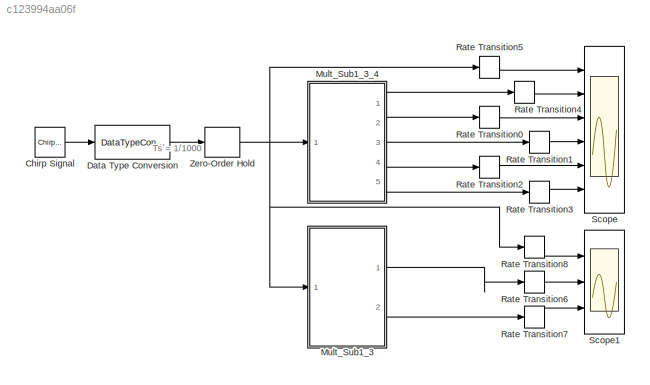
MODEL slx_c123994aa06f
KIND model
CONFIG AbsTol = auto
CONFIG FixedStep = auto
CONFIG MaxStep = auto
CONFIG MinStep = auto
CONFIG RelTol = 1e-3
CONFIG SampleTimeConstraint = Unconstrained
CONFIG Solver = FixedStepDiscrete
CONFIG SolverMode = SingleTasking
CONFIG SolverName = FixedStepDiscrete
CONFIG StartTime = 0.0
CONFIG StopTime = 1
BLOCK [Reference] Chirp Signal  REF=simulink/Sources/Chirp Signal
  Ports = [0, 1]
  SourceBlock = simulink/Sources/Chirp Signal
  SourceType = chirp
BLOCK [DataTypeConversion] Data Type Conversion
  OutDataTypeStr = fixdt(1,16,14)
  RndMeth = Floor
  SaturateOnIntegerOverflow = off
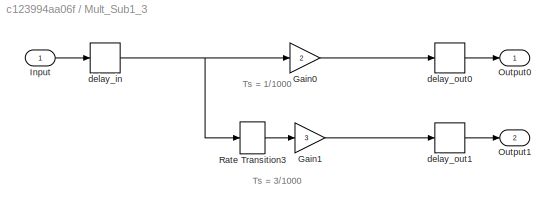
BLOCK [SubSystem] Mult_Sub1_3
  ErrorFcn = dspFilterRealizedInBasicElemsAlgLoopErrFcnCallback
  Ports = [1, 2]
  RequestExecContextInheritance = off
  Tag = FilterWizardSubSystem
  UserDataPersistent = on
  Variant = off
BLOCK [Gain] Mult_Sub1_3/Gain0
  Gain = 2
  OutDataTypeStr = Inherit: Inherit via internal rule
  ParamDataTypeStr = Inherit: Inherit via internal rule
  SaturateOnIntegerOverflow = off
BLOCK [Gain] Mult_Sub1_3/Gain1
  Gain = 3
  OutDataTypeStr = Inherit: Inherit via internal rule
  ParamDataTypeStr = Inherit: Inherit via internal rule
  SaturateOnIntegerOverflow = off
BLOCK [Inport] Mult_Sub1_3/Input
  IconDisplay = Port number
BLOCK [Outport] Mult_Sub1_3/Output0
  IconDisplay = Port number
BLOCK [Outport] Mult_Sub1_3/Output1
  IconDisplay = Port number
  Port = 2
BLOCK [RateTransition] Mult_Sub1_3/Rate Transition3
  OutPortSampleTime = 3/1000
BLOCK [Delay] Mult_Sub1_3/delay_in
  DelayLength = 1
  InitialCondition = 0
  InputPortMap = u0
  InputProcessing = Inherited
  Ports = [1, 1]
  UserDataPersistent = on
BLOCK [Delay] Mult_Sub1_3/delay_out0
  DelayLength = 1
  InitialCondition = 0
  InputPortMap = u0
  InputProcessing = Inherited
  Ports = [1, 1]
  UserDataPersistent = on
BLOCK [Delay] Mult_Sub1_3/delay_out1
  DelayLength = 1
  InitialCondition = 0
  InputPortMap = u0
  InputProcessing = Inherited
  Ports = [1, 1]
  UserDataPersistent = on
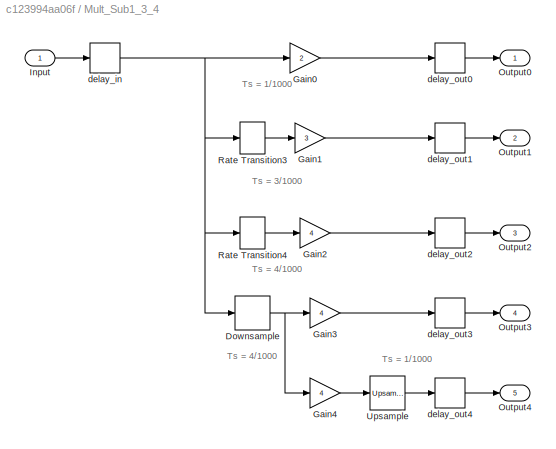
BLOCK [SubSystem] Mult_Sub1_3_4
  ErrorFcn = dspFilterRealizedInBasicElemsAlgLoopErrFcnCallback
  Ports = [1, 5]
  RequestExecContextInheritance = off
  Tag = FilterWizardSubSystem
  UserDataPersistent = on
  Variant = off
BLOCK [DownSample] Mult_Sub1_3_4/Downsample
  N = 4
  RateOptions = Allow multirate processing
  UserDataPersistent = on
BLOCK [Gain] Mult_Sub1_3_4/Gain0
  Gain = 2
  OutDataTypeStr = Inherit: Inherit via internal rule
  ParamDataTypeStr = Inherit: Inherit via internal rule
  SaturateOnIntegerOverflow = off
BLOCK [Gain] Mult_Sub1_3_4/Gain1
  Gain = 3
  OutDataTypeStr = Inherit: Inherit via internal rule
  ParamDataTypeStr = Inherit: Inherit via internal rule
  SaturateOnIntegerOverflow = off
BLOCK [Gain] Mult_Sub1_3_4/Gain2
  Gain = 4
  OutDataTypeStr = Inherit: Inherit via internal rule
  ParamDataTypeStr = Inherit: Inherit via internal rule
  SaturateOnIntegerOverflow = off
BLOCK [Gain] Mult_Sub1_3_4/Gain3
  Gain = 4
  OutDataTypeStr = Inherit: Inherit via internal rule
  ParamDataTypeStr = Inherit: Inherit via internal rule
  SaturateOnIntegerOverflow = off
BLOCK [Gain] Mult_Sub1_3_4/Gain4
  Gain = 4
  OutDataTypeStr = Inherit: Inherit via internal rule
  ParamDataTypeStr = Inherit: Inherit via internal rule
  SaturateOnIntegerOverflow = off
BLOCK [Inport] Mult_Sub1_3_4/Input
  IconDisplay = Port number
BLOCK [Outport] Mult_Sub1_3_4/Output0
  IconDisplay = Port number
BLOCK [Outport] Mult_Sub1_3_4/Output1
  IconDisplay = Port number
  Port = 2
BLOCK [Outport] Mult_Sub1_3_4/Output2
  IconDisplay = Port number
  Port = 3
BLOCK [Outport] Mult_Sub1_3_4/Output3
  IconDisplay = Port number
  Port = 4
BLOCK [Outport] Mult_Sub1_3_4/Output4
  IconDisplay = Port number
  Port = 5
BLOCK [RateTransition] Mult_Sub1_3_4/Rate Transition3
  OutPortSampleTime = 3/1000
BLOCK [RateTransition] Mult_Sub1_3_4/Rate Transition4
  OutPortSampleTime = 4/1000
BLOCK [Reference] Mult_Sub1_3_4/Upsample  REF=dspsigops/Upsample
  Ports = [1, 1]
  SourceBlock = dspsigops/Upsample
  SourceType = Upsample
  UserDataPersistent = on
BLOCK [Delay] Mult_Sub1_3_4/delay_in
  DelayLength = 1
  InitialCondition = 0
  InputPortMap = u0
  InputProcessing = Inherited
  Ports = [1, 1]
  UserDataPersistent = on
BLOCK [Delay] Mult_Sub1_3_4/delay_out0
  DelayLength = 1
  InitialCondition = 0
  InputPortMap = u0
  InputProcessing = Inherited
  Ports = [1, 1]
  UserDataPersistent = on
BLOCK [Delay] Mult_Sub1_3_4/delay_out1
  DelayLength = 1
  InitialCondition = 0
  InputPortMap = u0
  InputProcessing = Inherited
  Ports = [1, 1]
  UserDataPersistent = on
BLOCK [Delay] Mult_Sub1_3_4/delay_out2
  DelayLength = 1
  InitialCondition = 0
  InputPortMap = u0
  InputProcessing = Inherited
  Ports = [1, 1]
  UserDataPersistent = on
BLOCK [Delay] Mult_Sub1_3_4/delay_out3
  DelayLength = 1
  InitialCondition = 0
  InputPortMap = u0
  InputProcessing = Inherited
  Ports = [1, 1]
  UserDataPersistent = on
BLOCK [Delay] Mult_Sub1_3_4/delay_out4
  DelayLength = 1
  InitialCondition = 0
  InputPortMap = u0
  InputProcessing = Inherited
  Ports = [1, 1]
  UserDataPersistent = on
BLOCK [RateTransition] Rate Transition0
BLOCK [RateTransition] Rate Transition1
BLOCK [RateTransition] Rate Transition2
BLOCK [RateTransition] Rate Transition3
BLOCK [RateTransition] Rate Transition4
BLOCK [RateTransition] Rate Transition5
BLOCK [RateTransition] Rate Transition6
BLOCK [RateTransition] Rate Transition7
BLOCK [RateTransition] Rate Transition8
BLOCK [Scope] Scope
  NumInputPorts = 6
  Ports = [6]
  ScopeSpecificationString = Simulink.scopes.TimeScopeBlockCfg('CurrentConfiguration', extmgr.ConfigurationSet(extmgr.Configuration('Core','General UI',true),extmgr.Configuration('Core','Source UI',true),extmgr.Configuration('Sources','WiredSimulink',true,'DataLoggingSaveFormat','StructureWithTime','DataLoggingDecimation','1','DataLoggingDecimateData',true),extmgr.Configuration('Visuals','Time Domain',true,'SerializedDisplays...<+6481ch>
BLOCK [Scope] Scope1
  NumInputPorts = 3
  Ports = [3]
  ScopeSpecificationString = Simulink.scopes.TimeScopeBlockCfg('CurrentConfiguration', extmgr.ConfigurationSet(extmgr.Configuration('Core','General UI',true),extmgr.Configuration('Core','Source UI',true),extmgr.Configuration('Sources','WiredSimulink',true,'DataLoggingVariableName','ScopeData1','DataLoggingSaveFormat','StructureWithTime','DataLoggingDecimation','1','DataLoggingDecimateData',true),extmgr.Configuration('Visuals'...<+3117ch>
BLOCK [ZeroOrderHold] Zero-Order Hold
  SampleTime = 1/1000
ANNOTATION (root): Ts = 1/1000
ANNOTATION Mult_Sub1_3: Ts = 1/1000
ANNOTATION Mult_Sub1_3: Ts = 3/1000
ANNOTATION Mult_Sub1_3_4: Ts = 1/1000
ANNOTATION Mult_Sub1_3_4: Ts = 3/1000
ANNOTATION Mult_Sub1_3_4: Ts = 4/1000
LINE Chirp Signal:1 -> Data Type Conversion:1
LINE Data Type Conversion:1 -> Zero-Order Hold:1
LINE Mult_Sub1_3/Gain0:1 -> Mult_Sub1_3/delay_out0:1
LINE Mult_Sub1_3/Gain1:1 -> Mult_Sub1_3/delay_out1:1
LINE Mult_Sub1_3/Input:1 -> Mult_Sub1_3/delay_in:1
LINE Mult_Sub1_3/Rate Transition3:1 -> Mult_Sub1_3/Gain1:1
NET Mult_Sub1_3/delay_in:1 -> Mult_Sub1_3/Gain0:1, Mult_Sub1_3/Rate Transition3:1
LINE Mult_Sub1_3/delay_out0:1 -> Mult_Sub1_3/Output0:1
LINE Mult_Sub1_3/delay_out1:1 -> Mult_Sub1_3/Output1:1
LINE Mult_Sub1_3:1 -> Rate Transition6:1
LINE Mult_Sub1_3:2 -> Rate Transition7:1
NET Mult_Sub1_3_4/Downsample:1 -> Mult_Sub1_3_4/Gain3:1, Mult_Sub1_3_4/Gain4:1
LINE Mult_Sub1_3_4/Gain0:1 -> Mult_Sub1_3_4/delay_out0:1
LINE Mult_Sub1_3_4/Gain1:1 -> Mult_Sub1_3_4/delay_out1:1
LINE Mult_Sub1_3_4/Gain2:1 -> Mult_Sub1_3_4/delay_out2:1
LINE Mult_Sub1_3_4/Gain3:1 -> Mult_Sub1_3_4/delay_out3:1
LINE Mult_Sub1_3_4/Gain4:1 -> Mult_Sub1_3_4/Upsample:1
LINE Mult_Sub1_3_4/Input:1 -> Mult_Sub1_3_4/delay_in:1
LINE Mult_Sub1_3_4/Rate Transition3:1 -> Mult_Sub1_3_4/Gain1:1
LINE Mult_Sub1_3_4/Rate Transition4:1 -> Mult_Sub1_3_4/Gain2:1
LINE Mult_Sub1_3_4/Upsample:1 -> Mult_Sub1_3_4/delay_out4:1
NET Mult_Sub1_3_4/delay_in:1 -> Mult_Sub1_3_4/Downsample:1, Mult_Sub1_3_4/Gain0:1, Mult_Sub1_3_4/Rate Transition3:1, Mult_Sub1_3_4/Rate Transition4:1
LINE Mult_Sub1_3_4/delay_out0:1 -> Mult_Sub1_3_4/Output0:1
LINE Mult_Sub1_3_4/delay_out1:1 -> Mult_Sub1_3_4/Output1:1
LINE Mult_Sub1_3_4/delay_out2:1 -> Mult_Sub1_3_4/Output2:1
LINE Mult_Sub1_3_4/delay_out3:1 -> Mult_Sub1_3_4/Output3:1
LINE Mult_Sub1_3_4/delay_out4:1 -> Mult_Sub1_3_4/Output4:1
LINE Mult_Sub1_3_4:1 -> Rate Transition4:1
LINE Mult_Sub1_3_4:2 -> Rate Transition0:1
LINE Mult_Sub1_3_4:3 -> Rate Transition1:1
LINE Mult_Sub1_3_4:4 -> Rate Transition2:1
LINE Mult_Sub1_3_4:5 -> Rate Transition3:1
LINE Rate Transition0:1 -> Scope:3
LINE Rate Transition1:1 -> Scope:4
LINE Rate Transition2:1 -> Scope:5
LINE Rate Transition3:1 -> Scope:6
LINE Rate Transition4:1 -> Scope:2
LINE Rate Transition5:1 -> Scope:1
LINE Rate Transition6:1 -> Scope1:2
LINE Rate Transition7:1 -> Scope1:3
LINE Rate Transition8:1 -> Scope1:1
NET Zero-Order Hold:1 -> Mult_Sub1_3:1, Mult_Sub1_3_4:1, Rate Transition5:1, Rate Transition8:1
note: NET lines group one-source signal fan-out (src -> all destinations, sorted); 1:1 wires keep LINE
